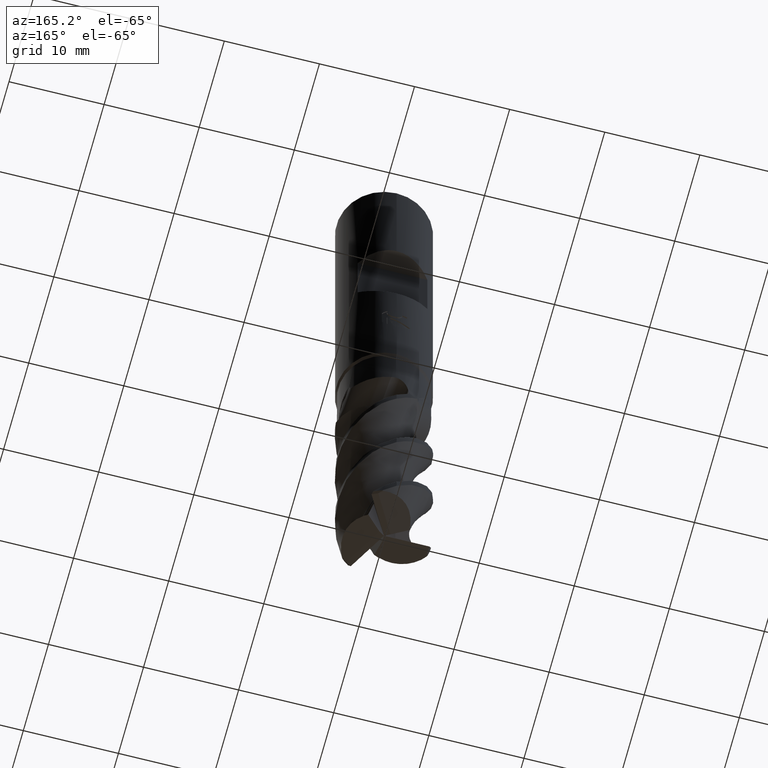
[diagram: clean part render]
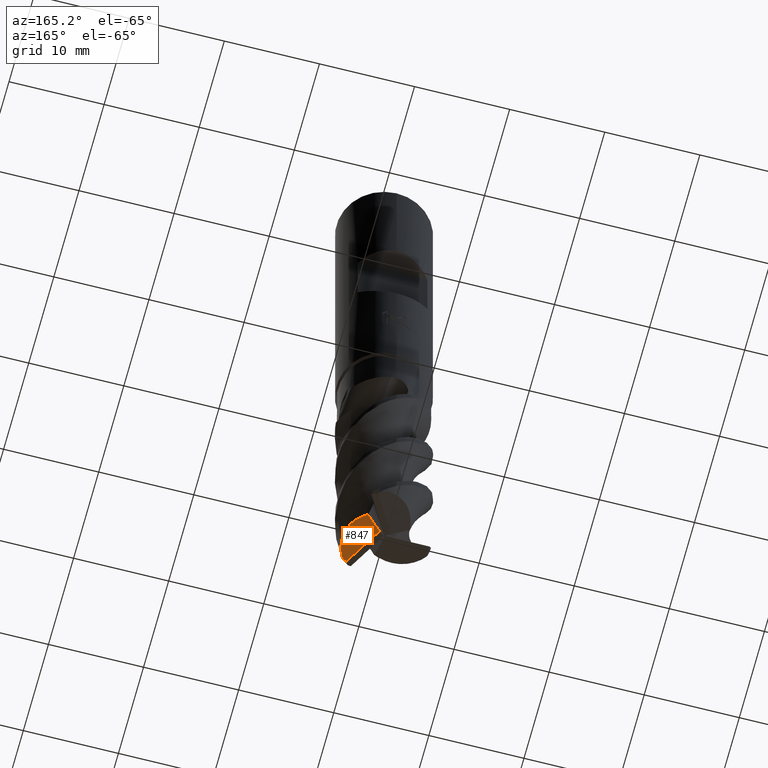
[diagram: same view with one face highlighted and labeled with its STEP entity id]
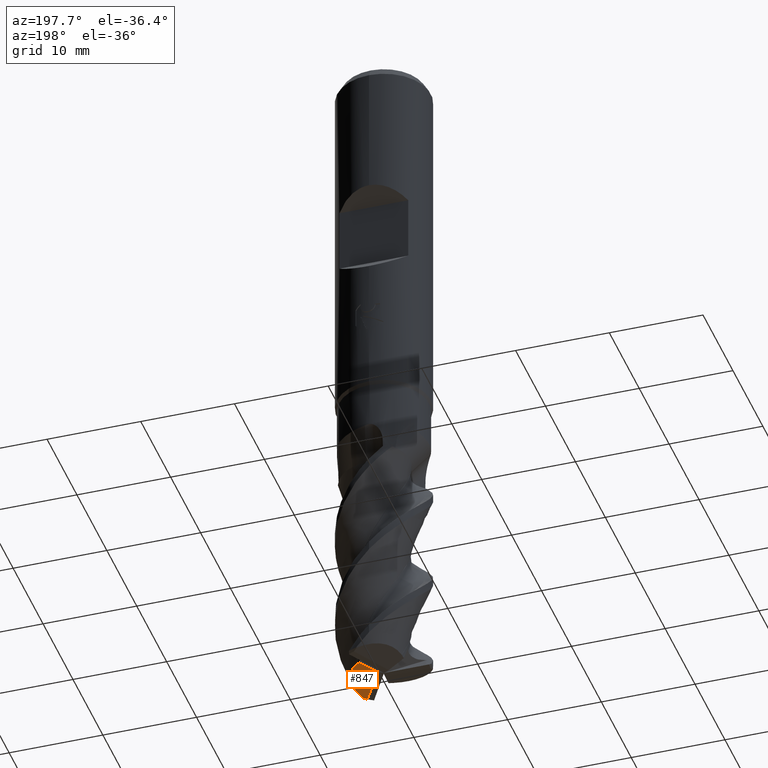
[diagram: same view with one face highlighted and labeled with its STEP entity id]
A machine part, auxiliary view. The second image highlights one B-rep face of the part: STEP entity #847.
A second angle (auxiliary view) of the same face is appended — the face is thin or edge-on in the first view.
In plain terms, the highlighted planar face has unit normal (0.2676, 0.1545, -0.9511).
Its self-contained STEP definition (entity closure, byte-faithful):
#509=EDGE_CURVE('',#1319,#835,#1413,.T.);
#765=VERTEX_POINT('',#1696);
#781=VERTEX_POINT('',#1713);
#835=VERTEX_POINT('',#1767);
#847=ADVANCED_FACE('',(#1783),#1784,.T.);
#859=EDGE_CURVE('',#781,#1003,#1797,.T.);
#959=EDGE_CURVE('',#765,#1131,#1905,.T.);
#1003=VERTEX_POINT('',#1950);
#1007=EDGE_CURVE('',#1319,#765,#1954,.T.);
#1131=VERTEX_POINT('',#2093);
#1227=EDGE_CURVE('',#1131,#1003,#2201,.T.);
#1261=EDGE_CURVE('',#835,#781,#2239,.T.);
#1319=VERTEX_POINT('',#2301);
#1413=LINE('',#2455,#2456);
#1696=CARTESIAN_POINT('',(2.49057545117904,1.33481166037854,-72.3034927063041));
#1713=CARTESIAN_POINT('',(2.96523083044045,-3.77457363449244,-73.0));
#1767=CARTESIAN_POINT('',(0.576931414014919,0.362082298443676,-73.0));
#1783=FACE_OUTER_BOUND('',#5426,.T.);
#1784=PLANE('',#5427);
#1797=ELLIPSE('',#5454,5.38274240479596,4.84152767965517);
#1905=B_SPLINE_CURVE_WITH_KNOTS('',3,(#6079,#6080,#6081,#6082,#6083,#6084),.UNSPECIFIED.,.F.,.F.,(4,2,4),(0.0,0.0471388898025567,0.0944284135134137),.UNSPECIFIED.);
#1950=CARTESIAN_POINT('',(3.43462371757239,-3.58287169020827,-72.8367742717254));
#1954=B_SPLINE_CURVE_WITH_KNOTS('',3,(#6659,#6660,#6661,#6662,#6663,#6664,#6665,#6666,#6667,#6668),.UNSPECIFIED.,.F.,.F.,(4,2,2,2,4),(0.0,1.12573722191872,2.0004992104101,2.44100699478742,2.87193624953085),.UNSPECIFIED.);
#2093=CARTESIAN_POINT('',(2.52090051144731,1.27770578238611,-72.3042369890684));
#2201=B_SPLINE_CURVE_WITH_KNOTS('',3,(#8132,#8133,#8134,#8135,#8136,#8137,#8138,#8139,#8140,#8141,#8142,#8143),.UNSPECIFIED.,.F.,.F.,(4,2,2,2,2,4),(0.0,1.48412961717875,2.86647355672612,4.32861088308654,5.38245037227994,6.53272780832244),.UNSPECIFIED.);
#2239=LINE('',#8269,#8270);
#2301=CARTESIAN_POINT('',(2.09483177205917,1.61215054976336,-72.3697940763852));
#2455=CARTESIAN_POINT('',(1.16609338816824,0.847287190102601,-72.7553901584433));
#2456=VECTOR('',#9446,1.0);
#5426=EDGE_LOOP('',(#9853,#9854,#9855,#9856,#9857,#9858));
#5427=AXIS2_PLACEMENT_3D('',#9859,#9860,#9861);
#5454=AXIS2_PLACEMENT_3D('',#9874,#9875,#9876);
#6079=CARTESIAN_POINT('',(2.49057545121393,1.33481166023712,-72.3034927064402));
#6080=CARTESIAN_POINT('',(2.49810426167913,1.32102038248591,-72.3036147130558));
#6081=CARTESIAN_POINT('',(2.50551675308719,1.30716643576474,-72.3037796317324));
#6082=CARTESIAN_POINT('',(2.52013089599901,1.27929170150415,-72.3041959019885));
#6083=CARTESIAN_POINT('',(2.52733142772752,1.26527122866477,-72.304447517534));
#6084=CARTESIAN_POINT('',(2.53441303497694,1.25119139712021,-72.3047422404916));
#6659=CARTESIAN_POINT('',(1.44564760860031,3.67002465791735,-72.2181452563718));
#6660=CARTESIAN_POINT('',(1.41000335250626,3.3030268248281,-72.287797559876));
#6661=CARTESIAN_POINT('',(1.43921195554866,2.92182150674816,-72.3415091468687));
#6662=CARTESIAN_POINT('',(1.62454770223567,2.28587535139867,-72.3926734757909));
#6663=CARTESIAN_POINT('',(1.74689852961215,2.03603955030554,-72.3988336203652));
#6664=CARTESIAN_POINT('',(1.9832631362505,1.72278449459467,-72.3832146571196));
#6665=CARTESIAN_POINT('',(2.07282766211153,1.6263764192008,-72.3736746519347));
#6666=CARTESIAN_POINT('',(2.27024705647914,1.45952439635549,-72.3452298172914));
#6667=CARTESIAN_POINT('',(2.37659304755913,1.3894810513059,-72.3266844871261));
#6668=CARTESIAN_POINT('',(2.4905754512547,1.33481166033867,-72.3034927064122));
#8132=CARTESIAN_POINT('',(2.4838476485155,1.30665566702607,-72.3099600525508));
#8133=CARTESIAN_POINT('',(2.87243452451074,1.00654366297596,-72.2493722429493));
#8134=CARTESIAN_POINT('',(3.20558334149243,0.640382235152357,-72.2151144560222));
#8135=CARTESIAN_POINT('',(3.69459321472558,-0.178733010512452,-72.210585936465));
#8136=CARTESIAN_POINT('',(3.85272243119704,-0.610405965611316,-72.2362196833706));
#8137=CARTESIAN_POINT('',(4.0032747323895,-1.53833764152569,-72.3446076045123));
#8138=CARTESIAN_POINT('',(3.98290027895215,-2.01973161282602,-72.4285479372298));
#8139=CARTESIAN_POINT('',(3.79772041660008,-2.81645028308918,-72.6100902541864));
#8140=CARTESIAN_POINT('',(3.6759547030831,-3.13595995299514,-72.6962612438084));
#8141=CARTESIAN_POINT('',(3.34383487266543,-3.76132166677802,-72.8913121838686));
#8142=CARTESIAN_POINT('',(3.12755058324997,-4.06117222166707,-73.0008858169091));
#8143=CARTESIAN_POINT('',(2.87791714063731,-4.32924753707443,-73.1146813246051));
#8269=CARTESIAN_POINT('',(0.671333567663608,0.198572971980194,-73.0));
#8270=VECTOR('',#10365,1.0);
#9446=DIRECTION('',(-0.735092888145227,-0.605386431573956,-0.305197828079527));
#9853=ORIENTED_EDGE('',*,*,#1227,.T.);
#9854=ORIENTED_EDGE('',*,*,#859,.F.);
#9855=ORIENTED_EDGE('',*,*,#1261,.F.);
#9856=ORIENTED_EDGE('',*,*,#509,.F.);
#9857=ORIENTED_EDGE('',*,*,#1007,.T.);
#9858=ORIENTED_EDGE('',*,*,#959,.T.);
#9859=CARTESIAN_POINT('',(3.98204892494695,-0.476506269308458,-72.17807534371));
#9860=DIRECTION('',(0.267616567329814,0.154508497187472,-0.951056516295155));
#9861=DIRECTION('',(0.823639103546333,0.475528258147578,0.309016994374943));
#9874=CARTESIAN_POINT('',(1.44051104519213,0.831679439712304,-72.6807077603806));
#9875=DIRECTION('',(-0.267616567329814,-0.154508497187472,0.951056516295155));
#9876=DIRECTION('',(-0.823639103546333,-0.475528258147577,-0.309016994374943));
#10365=DIRECTION('',(0.500000000000001,-0.866025403784438,0.0));